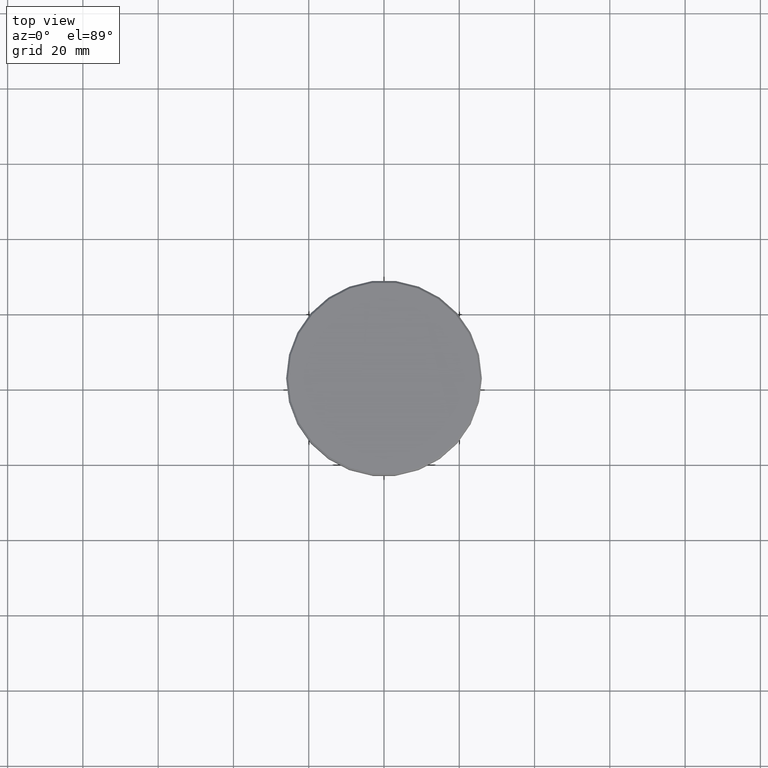
[diagram: clean part render]
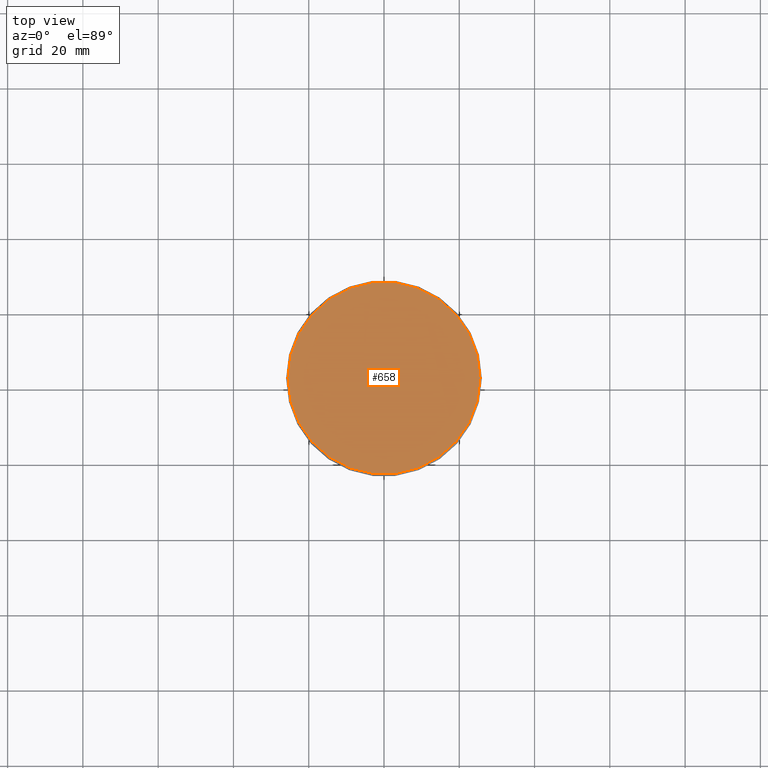
[diagram: same view with one face highlighted and labeled with its STEP entity id]
A machine part, top view. The second image highlights one B-rep face of the part: STEP entity #658.
In plain terms, the highlighted planar face has unit normal (0, -0, 1).
Its self-contained STEP definition (entity closure, byte-faithful):
#37 = CARTESIAN_POINT ( 'NONE',  ( -25.50000000000000000, 0.000000000000000000, 0.000000000000000000 ) ) ;
#47 = DIRECTION ( 'NONE',  ( -0.000000000000000000, -0.000000000000000000, 1.000000000000000000 ) ) ;
#130 = ORIENTED_EDGE ( 'NONE', *, *, #436, .T. ) ;
#237 = EDGE_LOOP ( 'NONE', ( #130, #916 ) ) ;
#246 = CARTESIAN_POINT ( 'NONE',  ( 0.000000000000000000, 0.000000000000000000, 0.000000000000000000 ) ) ;
#255 = DIRECTION ( 'NONE',  ( 1.000000000000000000, 0.000000000000000000, 0.000000000000000000 ) ) ;
#307 = DIRECTION ( 'NONE',  ( 1.000000000000000000, 0.000000000000000000, 0.000000000000000000 ) ) ;
#332 = VERTEX_POINT ( 'NONE', #37 ) ;
#355 = CIRCLE ( 'NONE', #376, 25.50000000000000000 ) ;
#376 = AXIS2_PLACEMENT_3D ( 'NONE', #866, #47, #955 ) ;
#436 = EDGE_CURVE ( 'NONE', #332, #1139, #686, .T. ) ;
#470 = AXIS2_PLACEMENT_3D ( 'NONE', #653, #1135, #307 ) ;
#476 = EDGE_CURVE ( 'NONE', #1139, #332, #355, .T. ) ;
#531 = FACE_OUTER_BOUND ( 'NONE', #237, .T. ) ;
#653 = CARTESIAN_POINT ( 'NONE',  ( 0.000000000000000000, 0.000000000000000000, 0.000000000000000000 ) ) ;
#658 = ADVANCED_FACE ( 'NONE', ( #531 ), #888, .T. ) ;
#686 = CIRCLE ( 'NONE', #470, 25.50000000000000000 ) ;
#730 = DIRECTION ( 'NONE',  ( 0.000000000000000000, -0.000000000000000000, 1.000000000000000000 ) ) ;
#866 = CARTESIAN_POINT ( 'NONE',  ( 0.000000000000000000, 0.000000000000000000, 0.000000000000000000 ) ) ;
#888 = PLANE ( 'NONE',  #1183 ) ;
#909 = CARTESIAN_POINT ( 'NONE',  ( 25.50000000000000000, 3.153465507804434404E-15, 0.000000000000000000 ) ) ;
#916 = ORIENTED_EDGE ( 'NONE', *, *, #476, .T. ) ;
#955 = DIRECTION ( 'NONE',  ( 1.000000000000000000, 0.000000000000000000, 0.000000000000000000 ) ) ;
#1135 = DIRECTION ( 'NONE',  ( -0.000000000000000000, -0.000000000000000000, 1.000000000000000000 ) ) ;
#1139 = VERTEX_POINT ( 'NONE', #909 ) ;
#1183 = AXIS2_PLACEMENT_3D ( 'NONE', #246, #730, #255 ) ;